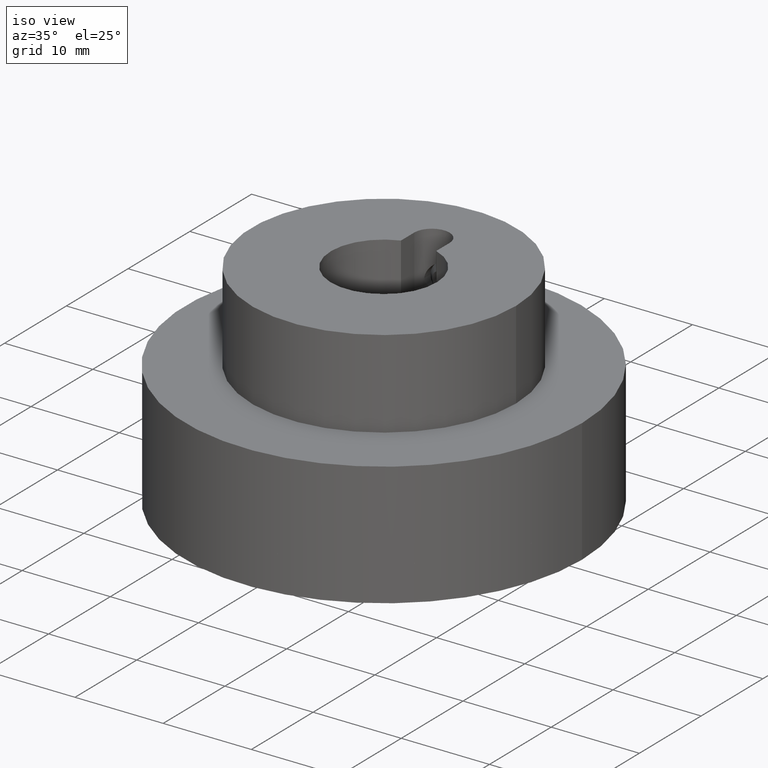
[diagram: clean part render]
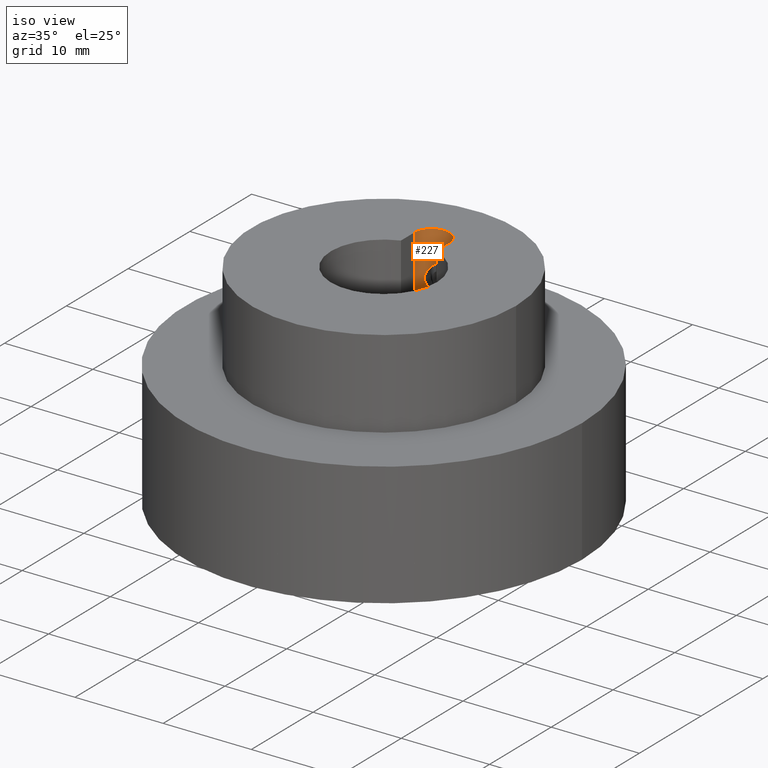
[diagram: same view with one face highlighted and labeled with its STEP entity id]
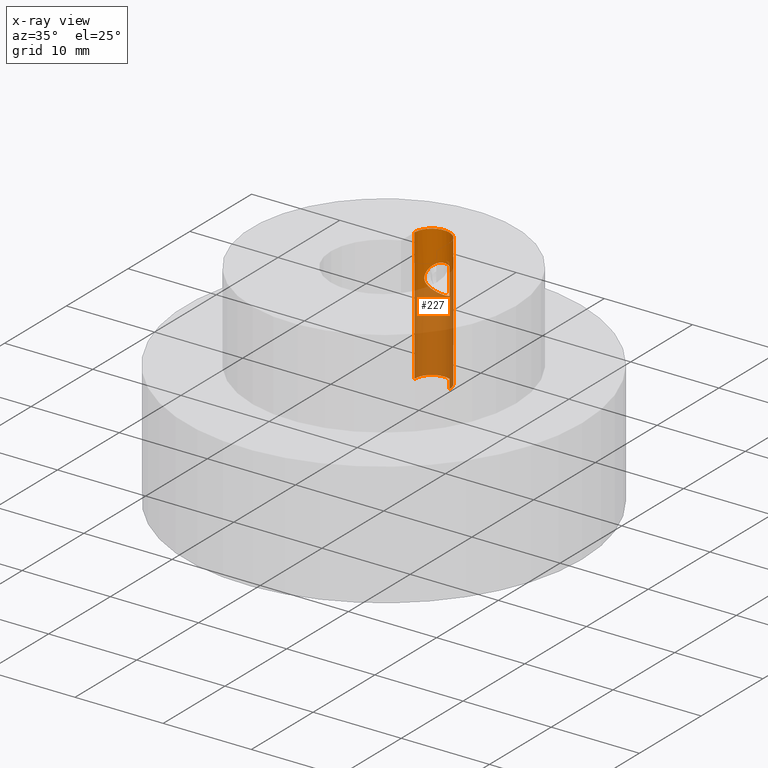
[diagram: x-ray of the same camera — body ghosted, the highlighted face saturated]
A machine part, iso view. The second image highlights one B-rep face of the part: STEP entity #227.
The next image is the same camera in x-ray: the body ghosted, the highlighted face saturated — about 68% of this face is hidden behind the body in this view.
In plain terms, the highlighted cylindrical surface (edge-blend (fillet) strip) has radius 2 mm, axis along (-0, -0, -1).
Its self-contained STEP definition (entity closure, byte-faithful):
#227 = ADVANCED_FACE( '', ( #278, #279 ), #280, .F. );
#278 = FACE_BOUND( '', #350, .T. );
#279 = FACE_OUTER_BOUND( '', #351, .T. );
#280 = CYLINDRICAL_SURFACE( '', #352, 2.00000000000000 );
#350 = EDGE_LOOP( '', ( #456 ) );
#351 = EDGE_LOOP( '', ( #457, #458, #459, #460 ) );
#352 = AXIS2_PLACEMENT_3D( '', #461, #462, #463 );
#456 = ORIENTED_EDGE( '', *, *, #583, .F. );
#457 = ORIENTED_EDGE( '', *, *, #569, .F. );
#458 = ORIENTED_EDGE( '', *, *, #576, .F. );
#459 = ORIENTED_EDGE( '', *, *, #584, .T. );
#460 = ORIENTED_EDGE( '', *, *, #579, .T. );
#461 = CARTESIAN_POINT( '', ( 0.000000000000000, 7.80000000000000, -33.6017757712962 ) );
#462 = DIRECTION( '', ( -0.000000000000000, -0.000000000000000, -1.00000000000000 ) );
#463 = DIRECTION( '', ( -1.00000000000000, 6.12303176911189E-017, 0.000000000000000 ) );
#569 = EDGE_CURVE( '', #620, #622, #623, .F. );
#576 = EDGE_CURVE( '', #633, #620, #635, .T. );
#579 = EDGE_CURVE( '', #639, #622, #640, .T. );
#583 = EDGE_CURVE( '', #646, #646, #647, .T. );
#584 = EDGE_CURVE( '', #633, #639, #648, .F. );
#620 = VERTEX_POINT( '', #700 );
#622 = VERTEX_POINT( '', #703 );
#623 = CIRCLE( '', #704, 2.00000000000000 );
#633 = VERTEX_POINT( '', #716 );
#635 = LINE( '', #719, #720 );
#639 = VERTEX_POINT( '', #725 );
#640 = LINE( '', #726, #727 );
#646 = VERTEX_POINT( '', #787 );
#647 = B_SPLINE_CURVE_WITH_KNOTS( '', 3, ( #788, #789, #790, #791, #792, #793, #794, #795, #796, #797, #798, #799, #800, #801, #802, #803, #804, #805, #806, #807, #808, #809, #810, #811, #812, #813, #814, #815, #816, #817, #818, #819, #820, #821, #822, #823, #824, #825, #826, #827, #828, #829, #830, #831, #832, #833, #834, #835, #836, #837, #838, #839, #840, #841 ), .UNSPECIFIED., .T., .F., ( 2, 2, 2, 2, 2, 2, 2, 2, 2, 2, 2, 2, 2, 2, 2, 2, 2, 2, 2, 2, 2, 2, 2, 2, 2, 2, 2, 2, 2 ), ( -0.000344037228202846, 0.000000000000000, 0.000688074456405694, 0.00103211168460854, 0.00137614891281139, 0.00172018614101423, 0.00206422336921708, 0.00240826059741992, 0.00275229782562277, 0.00309633505382562, 0.00344037228202846, 0.00412844673843415, 0.00481652119483985, 0.00516055842304269, 0.00550459565124554, 0.00584863287944839, 0.00619267010765123, 0.00688074456405693, 0.00722478179225977, 0.00756881902046261, 0.00791285624866546, 0.00825689347686830, 0.00860093070507114, 0.00894496793327399, 0.00963304238967967, 0.0103211168460853, 0.0106651540742882, 0.0110091913024910, 0.0116972657588967 ), .UNSPECIFIED. );
#648 = CIRCLE( '', #842, 2.00000000000000 );
#700 = CARTESIAN_POINT( '', ( -2.00000000000000, 7.80000000000001, 24.0000000000000 ) );
#703 = CARTESIAN_POINT( '', ( 2.00000000000000, 7.80000000000000, 24.0000000000000 ) );
#704 = AXIS2_PLACEMENT_3D( '', #941, #942, #943 );
#716 = CARTESIAN_POINT( '', ( -2.00000000000000, 7.80000000000001, 9.00000000000000 ) );
#719 = CARTESIAN_POINT( '', ( -2.00000000000000, 7.80000000000001, -33.6017757712962 ) );
#720 = VECTOR( '', #956, 1000.00000000000 );
#725 = CARTESIAN_POINT( '', ( 2.00000000000000, 7.80000000000000, 9.00000000000000 ) );
#726 = CARTESIAN_POINT( '', ( 2.00000000000000, 7.80000000000000, -33.6017757712962 ) );
#727 = VECTOR( '', #961, 1000.00000000000 );
#787 = CARTESIAN_POINT( '', ( -1.65000000000000, 8.93026545554573, 19.0000000000000 ) );
#788 = CARTESIAN_POINT( '', ( -1.65000000000000, 8.93026545554573, 19.1166195440712 ) );
#789 = CARTESIAN_POINT( '', ( -1.65000000000000, 8.93026545554573, 18.7667609118576 ) );
#790 = CARTESIAN_POINT( '', ( -1.60012076508522, 9.00639722232373, 18.5464014915561 ) );
#791 = CARTESIAN_POINT( '', ( -1.47747355713550, 9.14945065422459, 18.2580556588293 ) );
#792 = CARTESIAN_POINT( '', ( -1.42784573692154, 9.20259080836613, 18.1669054717123 ) );
#793 = CARTESIAN_POINT( '', ( -1.31504410401640, 9.30886163336797, 17.9982770113451 ) );
#794 = CARTESIAN_POINT( '', ( -1.25157766873091, 9.36248368621120, 17.9199693697682 ) );
#795 = CARTESIAN_POINT( '', ( -1.10896157900164, 9.46673517597734, 17.7739832630005 ) );
#796 = CARTESIAN_POINT( '', ( -1.02903790828481, 9.51773971456043, 17.7059334057107 ) );
#797 = CARTESIAN_POINT( '', ( -0.856682814178600, 9.60987383525934, 17.5859201143381 ) );
#798 = CARTESIAN_POINT( '', ( -0.763858430997311, 9.65147138169935, 17.5333204382522 ) );
#799 = CARTESIAN_POINT( '', ( -0.562162485484360, 9.72234214430507, 17.4448144871532 ) );
#800 = CARTESIAN_POINT( '', ( -0.455548898050380, 9.75066416340699, 17.4101022733253 ) );
#801 = CARTESIAN_POINT( '', ( -0.234277330202584, 9.78940433533969, 17.3628030929807 ) );
#802 = CARTESIAN_POINT( '', ( -0.117883540801114, 9.79980023773304, 17.3502421362479 ) );
#803 = CARTESIAN_POINT( '', ( 0.111004914973128, 9.80019384782594, 17.3497650327740 ) );
#804 = CARTESIAN_POINT( '', ( 0.226590917957302, 9.79033246928929, 17.3616771125469 ) );
#805 = CARTESIAN_POINT( '', ( 0.449321649122570, 9.75214672554030, 17.4082853951530 ) );
#806 = CARTESIAN_POINT( '', ( 0.555441039736003, 9.72432247574953, 17.4423701927425 ) );
#807 = CARTESIAN_POINT( '', ( 0.859727656273945, 9.61851459005114, 17.5744229879247 ) );
#808 = CARTESIAN_POINT( '', ( 1.03379566488077, 9.52125721912374, 17.6978316209576 ) );
#809 = CARTESIAN_POINT( '', ( 1.32057688624953, 9.31246043869430, 17.9898254350818 ) );
#810 = CARTESIAN_POINT( '', ( 1.43534896130709, 9.19842714257271, 18.1598905277389 ) );
#811 = CARTESIAN_POINT( '', ( 1.55828404304553, 9.05527173139605, 18.4476156386023 ) );
#812 = CARTESIAN_POINT( '', ( 1.59164625305185, 9.01167793877341, 18.5511662625683 ) );
#813 = CARTESIAN_POINT( '', ( 1.63738157984107, 8.94912261493774, 18.7681140782452 ) );
#814 = CARTESIAN_POINT( '', ( 1.64992182341530, 8.93037958030435, 18.8840498271493 ) );
#815 = CARTESIAN_POINT( '', ( 1.65007741924368, 8.93015243637892, 19.1137144514487 ) );
#816 = CARTESIAN_POINT( '', ( 1.63775649235365, 8.94857901132114, 19.2292234485254 ) );
#817 = CARTESIAN_POINT( '', ( 1.59237347100221, 9.01071334441409, 19.4462470688405 ) );
#818 = CARTESIAN_POINT( '', ( 1.55969449927092, 9.05353764184190, 19.5485743122417 ) );
#819 = CARTESIAN_POINT( '', ( 1.43616111508901, 9.19766070767590, 19.8392044327396 ) );
#820 = CARTESIAN_POINT( '', ( 1.32341717265858, 9.31002216372018, 20.0065920571153 ) );
#821 = CARTESIAN_POINT( '', ( 1.10811519562777, 9.46732741240978, 20.2268336720208 ) );
#822 = CARTESIAN_POINT( '', ( 1.02981636130814, 9.51724166785362, 20.2934012680302 ) );
#823 = CARTESIAN_POINT( '', ( 0.858506931735995, 9.60897941723831, 20.4129311470561 ) );
#824 = CARTESIAN_POINT( '', ( 0.764379971993920, 9.65124564165861, 20.4663943805358 ) );
#825 = CARTESIAN_POINT( '', ( 0.563053380607055, 9.72207129366535, 20.5548505109622 ) );
#826 = CARTESIAN_POINT( '', ( 0.457347821313282, 9.75029318370655, 20.5894437825022 ) );
#827 = CARTESIAN_POINT( '', ( 0.234391190489807, 9.78943994679232, 20.6372413802539 ) );
#828 = CARTESIAN_POINT( '', ( 0.119229438324814, 9.79972698894466, 20.6496690770894 ) );
#829 = CARTESIAN_POINT( '', ( -0.109887280319390, 9.80026210155093, 20.6503176992604 ) );
#830 = CARTESIAN_POINT( '', ( -0.226576431453151, 9.79031431562909, 20.6383003779882 ) );
#831 = CARTESIAN_POINT( '', ( -0.448625335361422, 9.75228667535277, 20.5918857736277 ) );
#832 = CARTESIAN_POINT( '', ( -0.556303654386258, 9.72404956704464, 20.5572912380652 ) );
#833 = CARTESIAN_POINT( '', ( -0.859358785565145, 9.61858858650968, 20.4256652839365 ) );
#834 = CARTESIAN_POINT( '', ( -1.03432912193654, 9.52087337902724, 20.3016337029966 ) );
#835 = CARTESIAN_POINT( '', ( -1.32011079048624, 9.31279523398656, 20.0106406533008 ) );
#836 = CARTESIAN_POINT( '', ( -1.43522244996225, 9.19856650739408, 19.8403616166290 ) );
#837 = CARTESIAN_POINT( '', ( -1.55826686879216, 9.05529570410510, 19.5524465110030 ) );
#838 = CARTESIAN_POINT( '', ( -1.59165072054812, 9.01167283795077, 19.4488412213579 ) );
#839 = CARTESIAN_POINT( '', ( -1.63741341322644, 8.94907806376900, 19.2317062200234 ) );
#840 = CARTESIAN_POINT( '', ( -1.65000000000000, 8.93026545554573, 19.1166195440712 ) );
#841 = CARTESIAN_POINT( '', ( -1.65000000000000, 8.93026545554573, 18.7667609118576 ) );
#842 = AXIS2_PLACEMENT_3D( '', #966, #967, #968 );
#941 = CARTESIAN_POINT( '', ( 0.000000000000000, 7.80000000000000, 24.0000000000000 ) );
#942 = DIRECTION( '', ( 0.000000000000000, 0.000000000000000, 1.00000000000000 ) );
#943 = DIRECTION( '', ( 1.00000000000000, 0.000000000000000, -0.000000000000000 ) );
#956 = DIRECTION( '', ( 0.000000000000000, 0.000000000000000, 1.00000000000000 ) );
#961 = DIRECTION( '', ( 0.000000000000000, 0.000000000000000, 1.00000000000000 ) );
#966 = CARTESIAN_POINT( '', ( 0.000000000000000, 7.80000000000000, 9.00000000000000 ) );
#967 = DIRECTION( '', ( 0.000000000000000, 0.000000000000000, 1.00000000000000 ) );
#968 = DIRECTION( '', ( 1.00000000000000, 0.000000000000000, -0.000000000000000 ) );